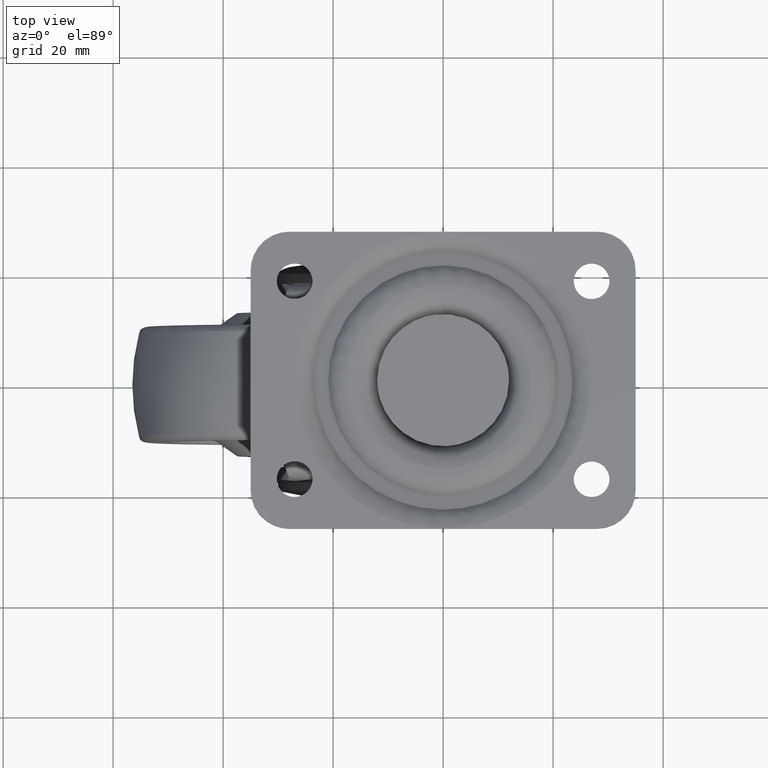
[diagram: clean part render]
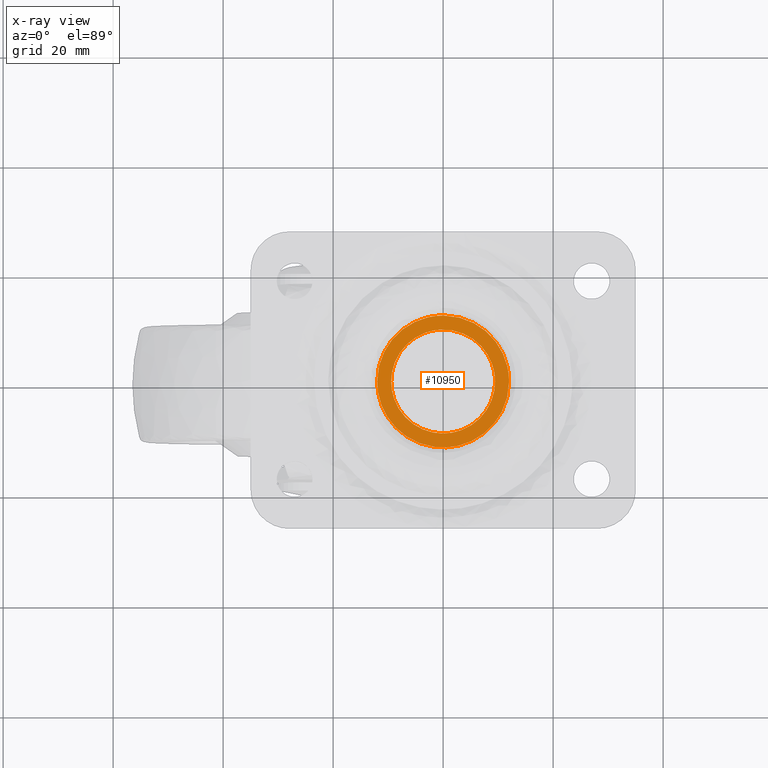
[diagram: x-ray — body ghosted, one internal face saturated and labeled with its STEP entity id]
A machine part, top view, then the same camera in x-ray: the body is ghosted and one INTERNAL B-rep face — a face not visible from any outside direction — is saturated and labeled: STEP entity #10950.
In plain terms, the highlighted face is a freeform B-spline surface patch.
Its self-contained STEP definition (entity closure, byte-faithful):
#6585=CARTESIAN_POINT('',(-0.576908698660161,9.432373845083230,-14.856576000000000));
#6586=VERTEX_POINT('',#6585);
#6592=CARTESIAN_POINT('',(-9.449999999999999,0.0,-14.856576000000000));
#6593=VERTEX_POINT('',#6592);
#6594=CARTESIAN_POINT('',(-9.449999999999999,0.0,-14.856576000000000));
#6595=CARTESIAN_POINT('',(-9.449999999999999,8.889672332153511,-14.856576000000000));
#6596=CARTESIAN_POINT('',(-0.576908698660161,9.432373845083230,-14.856576000000000));
#6604=(BOUNDED_CURVE()B_SPLINE_CURVE(2,(#6594,#6595,#6596),.UNSPECIFIED.,.F.,.U.)B_SPLINE_CURVE_WITH_KNOTS((3,3),(0.0,0.239332962239928),.UNSPECIFIED.)CURVE()GEOMETRIC_REPRESENTATION_ITEM()RATIONAL_B_SPLINE_CURVE((1.0,0.719603993285556,0.976072041668829))REPRESENTATION_ITEM(''));
#6605=EDGE_CURVE('',#6593,#6586,#6604,.T.);
#6607=CARTESIAN_POINT('',(9.449999999999999,0.0,-14.856576000000000));
#6608=VERTEX_POINT('',#6607);
#6609=CARTESIAN_POINT('',(9.449999999999999,0.0,-14.856576000000000));
#6610=CARTESIAN_POINT('',(9.449999999999999,-9.449999999999999,-14.856575999999997));
#6611=CARTESIAN_POINT('',(0.0,-9.449999999999999,-14.856576000000000));
#6612=CARTESIAN_POINT('',(-9.449999999999999,-9.449999999999999,-14.856575999999997));
#6613=CARTESIAN_POINT('',(-9.449999999999999,0.0,-14.856576000000000));
#6621=(BOUNDED_CURVE()B_SPLINE_CURVE(2,(#6609,#6610,#6611,#6612,#6613),.UNSPECIFIED.,.F.,.U.)B_SPLINE_CURVE_WITH_KNOTS((3,2,3),(0.500000000000000,0.750000000000000,1.0),.UNSPECIFIED.)CURVE()GEOMETRIC_REPRESENTATION_ITEM()RATIONAL_B_SPLINE_CURVE((1.0,0.707106781186547,1.0,0.707106781186547,1.0))REPRESENTATION_ITEM(''));
#6622=EDGE_CURVE('',#6608,#6593,#6621,.T.);
#6624=CARTESIAN_POINT('',(8.846556819434097,3.322789858014505,-14.856576000000000));
#6625=VERTEX_POINT('',#6624);
#6626=CARTESIAN_POINT('',(8.846556819434097,3.322789858014505,-14.856576000000000));
#6627=CARTESIAN_POINT('',(9.449999999999999,1.716189798346502,-14.856576000000006));
#6628=CARTESIAN_POINT('',(9.449999999999999,0.0,-14.856576000000000));
#6636=(BOUNDED_CURVE()B_SPLINE_CURVE(2,(#6626,#6627,#6628),.UNSPECIFIED.,.F.,.U.)B_SPLINE_CURVE_WITH_KNOTS((3,3),(0.440284170898404,0.500000000000000),.UNSPECIFIED.)CURVE()GEOMETRIC_REPRESENTATION_ITEM()RATIONAL_B_SPLINE_CURVE((0.893499554635147,0.930038554401278,1.0))REPRESENTATION_ITEM(''));
#6637=EDGE_CURVE('',#6625,#6608,#6636,.T.);
#6677=CARTESIAN_POINT('',(-0.576908698660161,9.432373845083230,-14.856576000000002));
#6678=CARTESIAN_POINT('',(-0.288723613227587,9.449999999999999,-14.856575999999999));
#6679=CARTESIAN_POINT('',(0.0,9.449999999999999,-14.856576000000000));
#6680=CARTESIAN_POINT('',(6.545160679289914,9.450000000000001,-14.856575999999997));
#6681=CARTESIAN_POINT('',(8.846556819434097,3.322789858014505,-14.856576000000006));
#6689=(BOUNDED_CURVE()B_SPLINE_CURVE(2,(#6677,#6678,#6679,#6680,#6681),.UNSPECIFIED.,.F.,.U.)B_SPLINE_CURVE_WITH_KNOTS((3,2,3),(0.239332962239928,0.250000000000000,0.440284170898404),.UNSPECIFIED.)CURVE()GEOMETRIC_REPRESENTATION_ITEM()RATIONAL_B_SPLINE_CURVE((0.976072041668829,0.987502787900992,1.0,0.777068226785269,0.893499554635148))REPRESENTATION_ITEM(''));
#6690=EDGE_CURVE('',#6586,#6625,#6689,.T.);
#6718=CARTESIAN_POINT('',(-1.489536025035089,-11.907194565896820,-14.856576000000020));
#6719=VERTEX_POINT('',#6718);
#6720=CARTESIAN_POINT('',(-12.0,0.0,-14.856576000000020));
#6721=VERTEX_POINT('',#6720);
#6722=CARTESIAN_POINT('',(-1.489536025035089,-11.907194565896811,-14.856576000000018));
#6723=CARTESIAN_POINT('',(-12.000000000000002,-10.592383201664438,-14.856576000000018));
#6724=CARTESIAN_POINT('',(-12.0,0.0,-14.856576000000020));
#6732=(BOUNDED_CURVE()B_SPLINE_CURVE(2,(#6722,#6723,#6724),.UNSPECIFIED.,.F.,.U.)B_SPLINE_CURVE_WITH_KNOTS((3,3),(0.771473928972886,1.0),.UNSPECIFIED.)CURVE()GEOMETRIC_REPRESENTATION_ITEM()RATIONAL_B_SPLINE_CURVE((0.954005430270478,0.732265053896308,1.0))REPRESENTATION_ITEM(''));
#6733=EDGE_CURVE('',#6719,#6721,#6732,.T.);
#6735=CARTESIAN_POINT('',(0.104699212242400,11.999543244415040,-14.856576000000270));
#6736=VERTEX_POINT('',#6735);
#6737=CARTESIAN_POINT('',(-12.0,0.0,-14.856576000000020));
#6738=CARTESIAN_POINT('',(-12.0,12.0,-14.856576000000022));
#6739=CARTESIAN_POINT('',(0.0,12.0,-14.856576000000020));
#6740=CARTESIAN_POINT('',(0.052350602430819,12.000000000000002,-14.856576000000020));
#6741=CARTESIAN_POINT('',(0.104699212242400,11.999543244415042,-14.856576000000272));
#6749=(BOUNDED_CURVE()B_SPLINE_CURVE(2,(#6737,#6738,#6739,#6740,#6741),.UNSPECIFIED.,.F.,.U.)B_SPLINE_CURVE_WITH_KNOTS((3,2,3),(0.0,0.250000000000000,0.251539612294058),.UNSPECIFIED.)CURVE()GEOMETRIC_REPRESENTATION_ITEM()RATIONAL_B_SPLINE_CURVE((1.0,0.707106781186548,1.0,0.998196231997875,0.996414680822883))REPRESENTATION_ITEM(''));
#6750=EDGE_CURVE('',#6721,#6736,#6749,.T.);
#6825=CARTESIAN_POINT('',(12.0,0.0,-14.856576000000020));
#6826=VERTEX_POINT('',#6825);
#6827=CARTESIAN_POINT('',(12.0,0.0,-14.856576000000020));
#6828=CARTESIAN_POINT('',(12.0,-12.0,-14.856576000000022));
#6829=CARTESIAN_POINT('',(0.0,-12.0,-14.856576000000020));
#6830=CARTESIAN_POINT('',(-0.747659130480012,-12.0,-14.856576000000020));
#6831=CARTESIAN_POINT('',(-1.489536025035089,-11.907194565896818,-14.856576000000020));
#6839=(BOUNDED_CURVE()B_SPLINE_CURVE(2,(#6827,#6828,#6829,#6830,#6831),.UNSPECIFIED.,.F.,.U.)B_SPLINE_CURVE_WITH_KNOTS((3,2,3),(0.500000000000000,0.750000000000000,0.771473928972887),.UNSPECIFIED.)CURVE()GEOMETRIC_REPRESENTATION_ITEM()RATIONAL_B_SPLINE_CURVE((1.0,0.707106781186548,1.0,0.974841727290238,0.954005430270476))REPRESENTATION_ITEM(''));
#6840=EDGE_CURVE('',#6826,#6719,#6839,.T.);
#6874=CARTESIAN_POINT('',(0.104699212242400,11.999543244415042,-14.856576000000272));
#6875=CARTESIAN_POINT('',(12.0,11.895753575399123,-14.856576000000024));
#6876=CARTESIAN_POINT('',(12.0,0.0,-14.856576000000020));
#6884=(BOUNDED_CURVE()B_SPLINE_CURVE(2,(#6874,#6875,#6876),.UNSPECIFIED.,.F.,.U.)B_SPLINE_CURVE_WITH_KNOTS((3,3),(0.251539612294058,0.500000000000000),.UNSPECIFIED.)CURVE()GEOMETRIC_REPRESENTATION_ITEM()RATIONAL_B_SPLINE_CURVE((0.996414680822883,0.708910549188673,1.0))REPRESENTATION_ITEM(''));
#6885=EDGE_CURVE('',#6736,#6826,#6884,.T.);
#10933=CARTESIAN_POINT('',(-13.198799953483340,-13.197954143342940,-14.856576000000020));
#10934=CARTESIAN_POINT('',(13.198800597213509,-13.197954143342940,-14.856576000000020));
#10935=CARTESIAN_POINT('',(-13.198799953483340,13.198282016572920,-14.856576000000020));
#10936=CARTESIAN_POINT('',(13.198800597213509,13.198282016572920,-14.856576000000020));
#10937=B_SPLINE_SURFACE_WITH_KNOTS('',1,1,((#10933,#10935),(#10934,#10936)),.UNSPECIFIED.,.F.,.F.,.U.,(2,2),(2,2),(0.0,26.397600550696851),(0.0,26.396236159915858),.UNSPECIFIED.);
#10938=ORIENTED_EDGE('',*,*,#6733,.F.);
#10939=ORIENTED_EDGE('',*,*,#6840,.F.);
#10940=ORIENTED_EDGE('',*,*,#6885,.F.);
#10941=ORIENTED_EDGE('',*,*,#6750,.F.);
#10942=EDGE_LOOP('',(#10938,#10939,#10940,#10941));
#10943=FACE_OUTER_BOUND('',#10942,.T.);
#10944=ORIENTED_EDGE('',*,*,#6622,.T.);
#10945=ORIENTED_EDGE('',*,*,#6605,.T.);
#10946=ORIENTED_EDGE('',*,*,#6690,.T.);
#10947=ORIENTED_EDGE('',*,*,#6637,.T.);
#10948=EDGE_LOOP('',(#10944,#10945,#10946,#10947));
#10949=FACE_BOUND('',#10948,.T.);
#10950=ADVANCED_FACE('',(#10943,#10949),#10937,.T.);